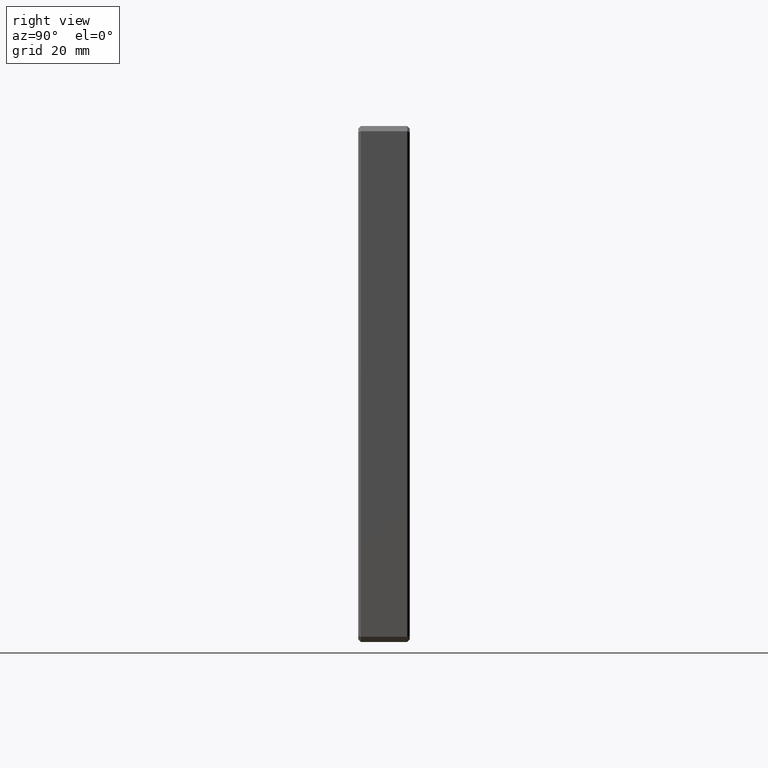
[diagram: clean part render]
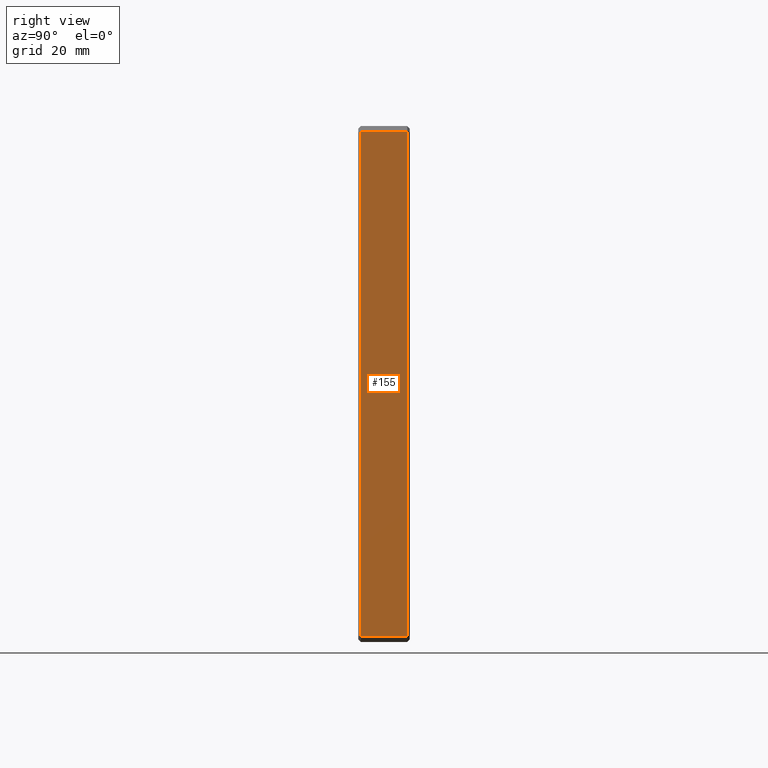
[diagram: same view with one face highlighted and labeled with its STEP entity id]
A machine part, right view. The second image highlights one B-rep face of the part: STEP entity #155.
In plain terms, the highlighted planar face has unit normal (-1, 0, 0).
Its self-contained STEP definition (entity closure, byte-faithful):
#19 = LINE ( 'NONE', #971, #149 ) ;
#36 = VECTOR ( 'NONE', #728, 1000.000000000000000 ) ;
#59 = ORIENTED_EDGE ( 'NONE', *, *, #734, .T. ) ;
#60 = DIRECTION ( 'NONE',  ( 0.000000000000000000, -1.000000000000000000, 0.000000000000000000 ) ) ;
#149 = VECTOR ( 'NONE', #1104, 1000.000000000000000 ) ;
#155 = ADVANCED_FACE ( 'NONE', ( #1189 ), #1159, .F. ) ;
#178 = CARTESIAN_POINT ( 'NONE',  ( 50.00000000000000711, 9.500000000000000000, 49.00000000000000000 ) ) ;
#200 = DIRECTION ( 'NONE',  ( 1.387778780781445676E-16, 0.000000000000000000, 1.000000000000000000 ) ) ;
#201 = CARTESIAN_POINT ( 'NONE',  ( 49.99999999999999289, 10.00000000000000000, -49.00000000000001421 ) ) ;
#291 = ORIENTED_EDGE ( 'NONE', *, *, #1432, .T. ) ;
#318 = CARTESIAN_POINT ( 'NONE',  ( 50.00000000000000711, 9.500000000000000000, 49.00000000000000000 ) ) ;
#331 = CARTESIAN_POINT ( 'NONE',  ( 49.99999999999999289, 10.00000000000000000, -49.99999999999998579 ) ) ;
#346 = CARTESIAN_POINT ( 'NONE',  ( 49.99999999999999289, 9.500000000000000000, -49.00000000000001421 ) ) ;
#434 = CARTESIAN_POINT ( 'NONE',  ( 50.00000000000000711, 0.5000000000000004441, 49.00000000000000000 ) ) ;
#444 = CARTESIAN_POINT ( 'NONE',  ( 49.99999999999999289, 0.5000000000000004441, -49.00000000000001421 ) ) ;
#474 = AXIS2_PLACEMENT_3D ( 'NONE', #331, #1434, #200 ) ;
#631 = LINE ( 'NONE', #201, #1535 ) ;
#669 = EDGE_CURVE ( 'NONE', #800, #1546, #19, .T. ) ;
#719 = CARTESIAN_POINT ( 'NONE',  ( 50.00000000000000711, 10.00000000000000000, 49.00000000000000000 ) ) ;
#728 = DIRECTION ( 'NONE',  ( 1.387778780781445676E-16, 0.000000000000000000, 1.000000000000000000 ) ) ;
#734 = EDGE_CURVE ( 'NONE', #853, #800, #740, .T. ) ;
#740 = LINE ( 'NONE', #719, #1617 ) ;
#800 = VERTEX_POINT ( 'NONE', #434 ) ;
#853 = VERTEX_POINT ( 'NONE', #178 ) ;
#894 = EDGE_CURVE ( 'NONE', #1745, #853, #1554, .T. ) ;
#896 = DIRECTION ( 'NONE',  ( 0.000000000000000000, 1.000000000000000000, 0.000000000000000000 ) ) ;
#971 = CARTESIAN_POINT ( 'NONE',  ( 49.99999999999999289, 0.5000000000000004441, -49.99999999999998579 ) ) ;
#1104 = DIRECTION ( 'NONE',  ( -1.387778780781445676E-16, 0.000000000000000000, -1.000000000000000000 ) ) ;
#1159 = PLANE ( 'NONE',  #474 ) ;
#1189 = FACE_OUTER_BOUND ( 'NONE', #1712, .T. ) ;
#1299 = ORIENTED_EDGE ( 'NONE', *, *, #894, .T. ) ;
#1432 = EDGE_CURVE ( 'NONE', #1546, #1745, #631, .T. ) ;
#1434 = DIRECTION ( 'NONE',  ( -1.000000000000000000, 0.000000000000000000, 1.387778780781445676E-16 ) ) ;
#1535 = VECTOR ( 'NONE', #896, 1000.000000000000000 ) ;
#1546 = VERTEX_POINT ( 'NONE', #444 ) ;
#1554 = LINE ( 'NONE', #318, #36 ) ;
#1617 = VECTOR ( 'NONE', #60, 1000.000000000000000 ) ;
#1684 = ORIENTED_EDGE ( 'NONE', *, *, #669, .T. ) ;
#1712 = EDGE_LOOP ( 'NONE', ( #59, #1684, #291, #1299 ) ) ;
#1745 = VERTEX_POINT ( 'NONE', #346 ) ;